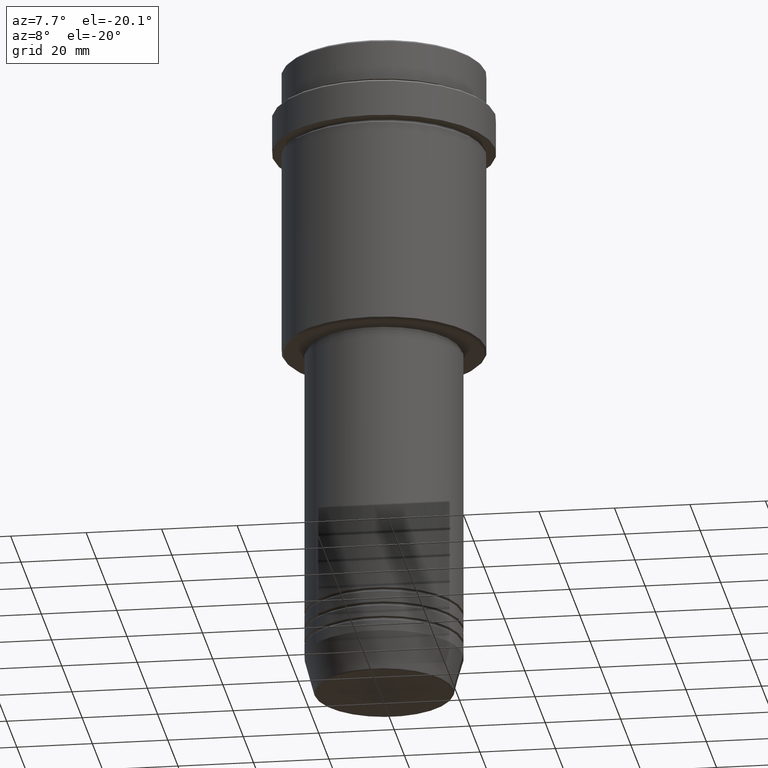
[diagram: clean part render]
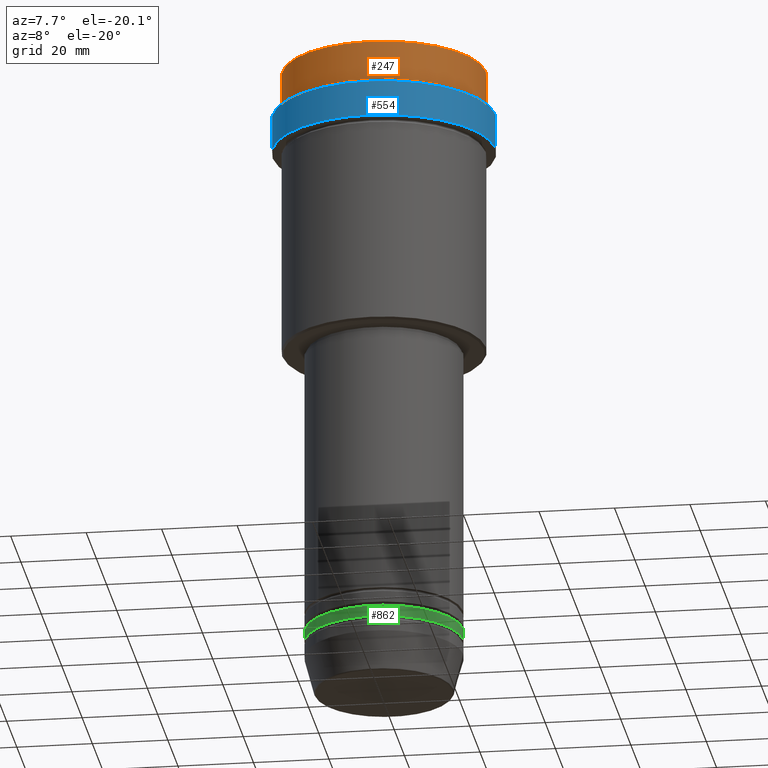
[diagram: same view with three faces highlighted in distinct colors, each labeled with its STEP entity id]
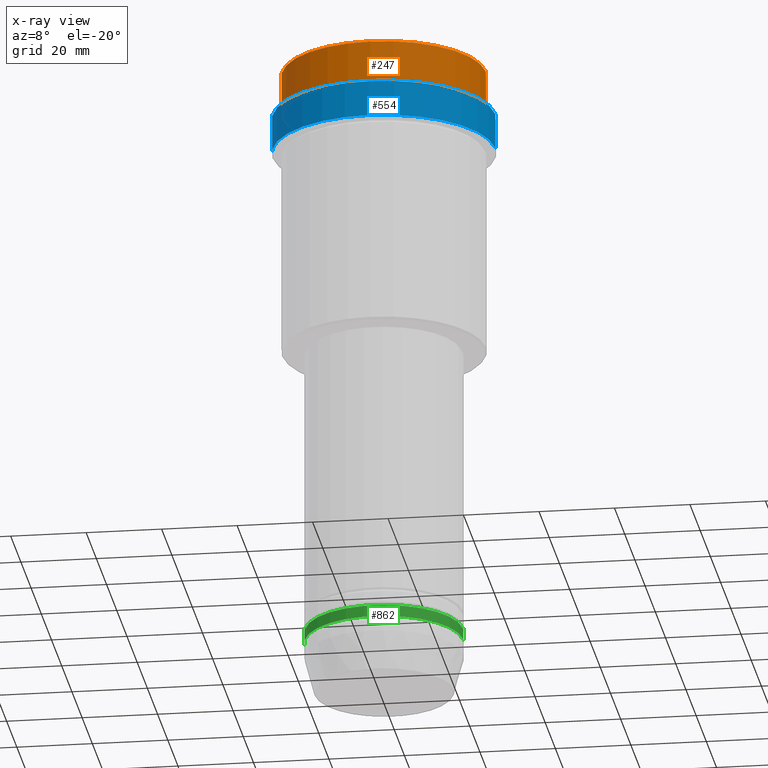
[diagram: x-ray of the same camera — body ghosted, the three highlighted faces saturated]
A machine part, auxiliary view with three faces highlighted in distinct colors.
The next image is the same camera in x-ray (body ghosted, the three faces saturated) — at least one of them is partly hidden behind the body in this view.
Their STEP definitions:

[orange] entity #247 — the highlighted cylindrical surface (partial cylindrical patch) has radius 27 mm, axis along (-0, -0, 1).
#27 = DIRECTION ( 'NONE',  ( 1.000000000000000000, 0.000000000000000000, 0.000000000000000000 ) ) ;
#73 = AXIS2_PLACEMENT_3D ( 'NONE', #715, #167, #600 ) ;
#84 = DIRECTION ( 'NONE',  ( -0.000000000000000000, -0.000000000000000000, 1.000000000000000000 ) ) ;
#131 = CARTESIAN_POINT ( 'NONE',  ( -27.00000000000000355, 3.306546357697854128E-15, -10.99999999999998757 ) ) ;
#133 = VERTEX_POINT ( 'NONE', #646 ) ;
#167 = DIRECTION ( 'NONE',  ( 0.000000000000000000, 0.000000000000000000, -1.000000000000000000 ) ) ;
#179 = AXIS2_PLACEMENT_3D ( 'NONE', #788, #1329, #27 ) ;
#208 = CARTESIAN_POINT ( 'NONE',  ( 27.00000000000000355, 0.000000000000000000, -0.4999999999999796274 ) ) ;
#225 = ORIENTED_EDGE ( 'NONE', *, *, #930, .T. ) ;
#235 = EDGE_CURVE ( 'NONE', #1093, #1206, #574, .T. ) ;
#247 = ADVANCED_FACE ( 'NONE', ( #1020 ), #333, .T. ) ;
#308 = CARTESIAN_POINT ( 'NONE',  ( 0.000000000000000000, 0.000000000000000000, -10.99999999999998757 ) ) ;
#333 = CYLINDRICAL_SURFACE ( 'NONE', #179, 27.00000000000000355 ) ;
#334 = ORIENTED_EDGE ( 'NONE', *, *, #970, .F. ) ;
#449 = EDGE_CURVE ( 'NONE', #1206, #133, #915, .T. ) ;
#555 = DIRECTION ( 'NONE',  ( -0.000000000000000000, -0.000000000000000000, 1.000000000000000000 ) ) ;
#574 = LINE ( 'NONE', #1323, #1052 ) ;
#586 = CIRCLE ( 'NONE', #1404, 27.00000000000000355 ) ;
#600 = DIRECTION ( 'NONE',  ( 1.000000000000000000, 0.000000000000000000, 0.000000000000000000 ) ) ;
#646 = CARTESIAN_POINT ( 'NONE',  ( -27.00000000000000355, 3.306546357697854128E-15, -0.4999999999999796274 ) ) ;
#683 = EDGE_LOOP ( 'NONE', ( #334, #225, #1315, #840 ) ) ;
#715 = CARTESIAN_POINT ( 'NONE',  ( 0.000000000000000000, 0.000000000000000000, -0.4999999999999796274 ) ) ;
#788 = CARTESIAN_POINT ( 'NONE',  ( 0.000000000000000000, 0.000000000000000000, 0.000000000000000000 ) ) ;
#824 = DIRECTION ( 'NONE',  ( -0.000000000000000000, -0.000000000000000000, 1.000000000000000000 ) ) ;
#840 = ORIENTED_EDGE ( 'NONE', *, *, #449, .T. ) ;
#854 = LINE ( 'NONE', #1306, #1259 ) ;
#915 = CIRCLE ( 'NONE', #73, 27.00000000000000355 ) ;
#930 = EDGE_CURVE ( 'NONE', #1080, #1093, #586, .T. ) ;
#970 = EDGE_CURVE ( 'NONE', #1080, #133, #854, .T. ) ;
#1020 = FACE_OUTER_BOUND ( 'NONE', #683, .T. ) ;
#1052 = VECTOR ( 'NONE', #555, 1000.000000000000000 ) ;
#1080 = VERTEX_POINT ( 'NONE', #131 ) ;
#1093 = VERTEX_POINT ( 'NONE', #1321 ) ;
#1193 = DIRECTION ( 'NONE',  ( 1.000000000000000000, 0.000000000000000000, 0.000000000000000000 ) ) ;
#1206 = VERTEX_POINT ( 'NONE', #208 ) ;
#1259 = VECTOR ( 'NONE', #84, 1000.000000000000000 ) ;
#1306 = CARTESIAN_POINT ( 'NONE',  ( -27.00000000000000355, 3.306546357697854128E-15, 0.000000000000000000 ) ) ;
#1315 = ORIENTED_EDGE ( 'NONE', *, *, #235, .T. ) ;
#1321 = CARTESIAN_POINT ( 'NONE',  ( 27.00000000000000355, 0.000000000000000000, -10.99999999999998757 ) ) ;
#1323 = CARTESIAN_POINT ( 'NONE',  ( 27.00000000000000355, 0.000000000000000000, 0.000000000000000000 ) ) ;
#1329 = DIRECTION ( 'NONE',  ( -0.000000000000000000, -0.000000000000000000, 1.000000000000000000 ) ) ;
#1404 = AXIS2_PLACEMENT_3D ( 'NONE', #308, #824, #1193 ) ;

[blue] entity #554 — the highlighted cylindrical surface (partial cylindrical patch) has radius 29.5 mm, axis along (-0, -0, 1).
#8 = CARTESIAN_POINT ( 'NONE',  ( -29.49999999999999645, 3.612708057484690815E-15, -21.99999999999999289 ) ) ;
#42 = DIRECTION ( 'NONE',  ( -0.000000000000000000, -0.000000000000000000, 1.000000000000000000 ) ) ;
#50 = VERTEX_POINT ( 'NONE', #294 ) ;
#53 = VERTEX_POINT ( 'NONE', #727 ) ;
#106 = DIRECTION ( 'NONE',  ( -0.000000000000000000, -0.000000000000000000, 1.000000000000000000 ) ) ;
#184 = ORIENTED_EDGE ( 'NONE', *, *, #286, .T. ) ;
#185 = DIRECTION ( 'NONE',  ( 1.000000000000000000, 0.000000000000000000, 0.000000000000000000 ) ) ;
#286 = EDGE_CURVE ( 'NONE', #649, #1106, #615, .T. ) ;
#294 = CARTESIAN_POINT ( 'NONE',  ( -29.50000000000000000, 3.612708057484691604E-15, -12.49999999999999112 ) ) ;
#345 = CARTESIAN_POINT ( 'NONE',  ( 29.49999999999999645, 0.000000000000000000, -21.99999999999999289 ) ) ;
#346 = EDGE_CURVE ( 'NONE', #53, #50, #360, .T. ) ;
#349 = LINE ( 'NONE', #461, #522 ) ;
#357 = CARTESIAN_POINT ( 'NONE',  ( 0.000000000000000000, 0.000000000000000000, -21.99999999999999289 ) ) ;
#360 = CIRCLE ( 'NONE', #914, 29.50000000000000000 ) ;
#374 = DIRECTION ( 'NONE',  ( 0.000000000000000000, 0.000000000000000000, -1.000000000000000000 ) ) ;
#418 = FACE_OUTER_BOUND ( 'NONE', #1374, .T. ) ;
#440 = CARTESIAN_POINT ( 'NONE',  ( -29.50000000000000000, 3.612708057484691604E-15, 0.000000000000000000 ) ) ;
#446 = DIRECTION ( 'NONE',  ( -0.000000000000000000, -0.000000000000000000, 1.000000000000000000 ) ) ;
#451 = AXIS2_PLACEMENT_3D ( 'NONE', #1303, #106, #185 ) ;
#461 = CARTESIAN_POINT ( 'NONE',  ( 29.50000000000000000, 0.000000000000000000, 0.000000000000000000 ) ) ;
#513 = ORIENTED_EDGE ( 'NONE', *, *, #346, .T. ) ;
#522 = VECTOR ( 'NONE', #1116, 1000.000000000000000 ) ;
#550 = DIRECTION ( 'NONE',  ( 1.000000000000000000, 0.000000000000000000, 0.000000000000000000 ) ) ;
#554 = ADVANCED_FACE ( 'NONE', ( #418 ), #832, .T. ) ;
#615 = CIRCLE ( 'NONE', #894, 29.49999999999999645 ) ;
#649 = VERTEX_POINT ( 'NONE', #8 ) ;
#653 = EDGE_CURVE ( 'NONE', #649, #50, #776, .T. ) ;
#660 = VECTOR ( 'NONE', #446, 1000.000000000000000 ) ;
#714 = ORIENTED_EDGE ( 'NONE', *, *, #1186, .T. ) ;
#727 = CARTESIAN_POINT ( 'NONE',  ( 29.50000000000000000, 0.000000000000000000, -12.49999999999999112 ) ) ;
#776 = LINE ( 'NONE', #440, #660 ) ;
#832 = CYLINDRICAL_SURFACE ( 'NONE', #451, 29.50000000000000000 ) ;
#894 = AXIS2_PLACEMENT_3D ( 'NONE', #357, #42, #550 ) ;
#914 = AXIS2_PLACEMENT_3D ( 'NONE', #1136, #374, #1036 ) ;
#971 = ORIENTED_EDGE ( 'NONE', *, *, #653, .F. ) ;
#1036 = DIRECTION ( 'NONE',  ( 1.000000000000000000, 0.000000000000000000, 0.000000000000000000 ) ) ;
#1106 = VERTEX_POINT ( 'NONE', #345 ) ;
#1116 = DIRECTION ( 'NONE',  ( -0.000000000000000000, -0.000000000000000000, 1.000000000000000000 ) ) ;
#1136 = CARTESIAN_POINT ( 'NONE',  ( 0.000000000000000000, 0.000000000000000000, -12.49999999999999112 ) ) ;
#1186 = EDGE_CURVE ( 'NONE', #1106, #53, #349, .T. ) ;
#1303 = CARTESIAN_POINT ( 'NONE',  ( 0.000000000000000000, 0.000000000000000000, 0.000000000000000000 ) ) ;
#1374 = EDGE_LOOP ( 'NONE', ( #971, #184, #714, #513 ) ) ;

[green] entity #862 — the highlighted cylindrical surface (partial cylindrical patch) has radius 21 mm, axis along (-0, -0, 1).
#10 = CIRCLE ( 'NONE', #1077, 21.00000000000000000 ) ;
#45 = EDGE_CURVE ( 'NONE', #984, #620, #690, .T. ) ;
#82 = DIRECTION ( 'NONE',  ( -0.000000000000000000, -0.000000000000000000, 1.000000000000000000 ) ) ;
#95 = CARTESIAN_POINT ( 'NONE',  ( -21.00000000000000000, 2.571758278209441661E-15, -155.9999999999998579 ) ) ;
#197 = ORIENTED_EDGE ( 'NONE', *, *, #304, .F. ) ;
#217 = DIRECTION ( 'NONE',  ( -0.000000000000000000, -0.000000000000000000, 1.000000000000000000 ) ) ;
#287 = ORIENTED_EDGE ( 'NONE', *, *, #45, .F. ) ;
#304 = EDGE_CURVE ( 'NONE', #1184, #984, #1212, .T. ) ;
#317 = VECTOR ( 'NONE', #1109, 1000.000000000000000 ) ;
#319 = CARTESIAN_POINT ( 'NONE',  ( 21.00000000000000000, 0.000000000000000000, -155.9999999999998579 ) ) ;
#339 = EDGE_LOOP ( 'NONE', ( #197, #806, #897, #287 ) ) ;
#494 = CARTESIAN_POINT ( 'NONE',  ( 0.000000000000000000, 0.000000000000000000, 0.000000000000000000 ) ) ;
#602 = CARTESIAN_POINT ( 'NONE',  ( 0.000000000000000000, 0.000000000000000000, -155.9999999999998579 ) ) ;
#620 = VERTEX_POINT ( 'NONE', #319 ) ;
#680 = CARTESIAN_POINT ( 'NONE',  ( -21.00000000000000000, 2.571758278209441661E-15, -158.9999999999998579 ) ) ;
#690 = CIRCLE ( 'NONE', #772, 21.00000000000000000 ) ;
#696 = FACE_OUTER_BOUND ( 'NONE', #339, .T. ) ;
#721 = VERTEX_POINT ( 'NONE', #1092 ) ;
#772 = AXIS2_PLACEMENT_3D ( 'NONE', #602, #82, #1279 ) ;
#806 = ORIENTED_EDGE ( 'NONE', *, *, #1292, .T. ) ;
#862 = ADVANCED_FACE ( 'NONE', ( #696 ), #1135, .T. ) ;
#867 = LINE ( 'NONE', #1208, #317 ) ;
#897 = ORIENTED_EDGE ( 'NONE', *, *, #1094, .T. ) ;
#928 = DIRECTION ( 'NONE',  ( -0.000000000000000000, -0.000000000000000000, 1.000000000000000000 ) ) ;
#959 = AXIS2_PLACEMENT_3D ( 'NONE', #494, #1035, #1270 ) ;
#984 = VERTEX_POINT ( 'NONE', #95 ) ;
#1002 = CARTESIAN_POINT ( 'NONE',  ( -21.00000000000000000, 2.571758278209441661E-15, 0.000000000000000000 ) ) ;
#1018 = DIRECTION ( 'NONE',  ( 1.000000000000000000, 0.000000000000000000, 0.000000000000000000 ) ) ;
#1033 = CARTESIAN_POINT ( 'NONE',  ( 0.000000000000000000, 0.000000000000000000, -158.9999999999998579 ) ) ;
#1035 = DIRECTION ( 'NONE',  ( -0.000000000000000000, -0.000000000000000000, 1.000000000000000000 ) ) ;
#1077 = AXIS2_PLACEMENT_3D ( 'NONE', #1033, #928, #1018 ) ;
#1092 = CARTESIAN_POINT ( 'NONE',  ( 21.00000000000000000, 0.000000000000000000, -158.9999999999998579 ) ) ;
#1094 = EDGE_CURVE ( 'NONE', #721, #620, #867, .T. ) ;
#1109 = DIRECTION ( 'NONE',  ( -0.000000000000000000, -0.000000000000000000, 1.000000000000000000 ) ) ;
#1135 = CYLINDRICAL_SURFACE ( 'NONE', #959, 21.00000000000000000 ) ;
#1184 = VERTEX_POINT ( 'NONE', #680 ) ;
#1208 = CARTESIAN_POINT ( 'NONE',  ( 21.00000000000000000, 0.000000000000000000, 0.000000000000000000 ) ) ;
#1212 = LINE ( 'NONE', #1002, #1264 ) ;
#1264 = VECTOR ( 'NONE', #217, 1000.000000000000000 ) ;
#1270 = DIRECTION ( 'NONE',  ( 1.000000000000000000, 0.000000000000000000, 0.000000000000000000 ) ) ;
#1279 = DIRECTION ( 'NONE',  ( 1.000000000000000000, 0.000000000000000000, 0.000000000000000000 ) ) ;
#1292 = EDGE_CURVE ( 'NONE', #1184, #721, #10, .T. ) ;